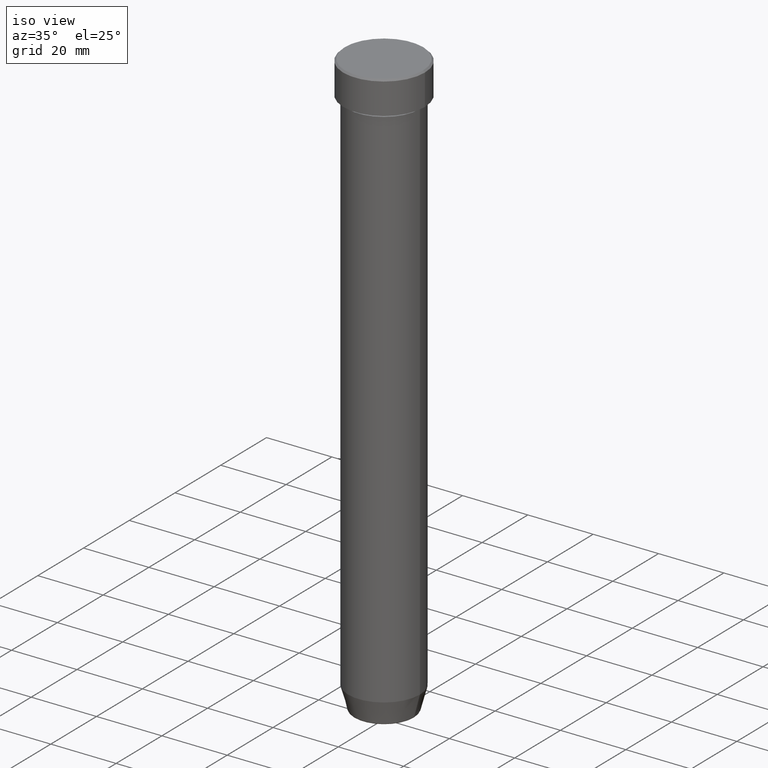
[diagram: clean part render]
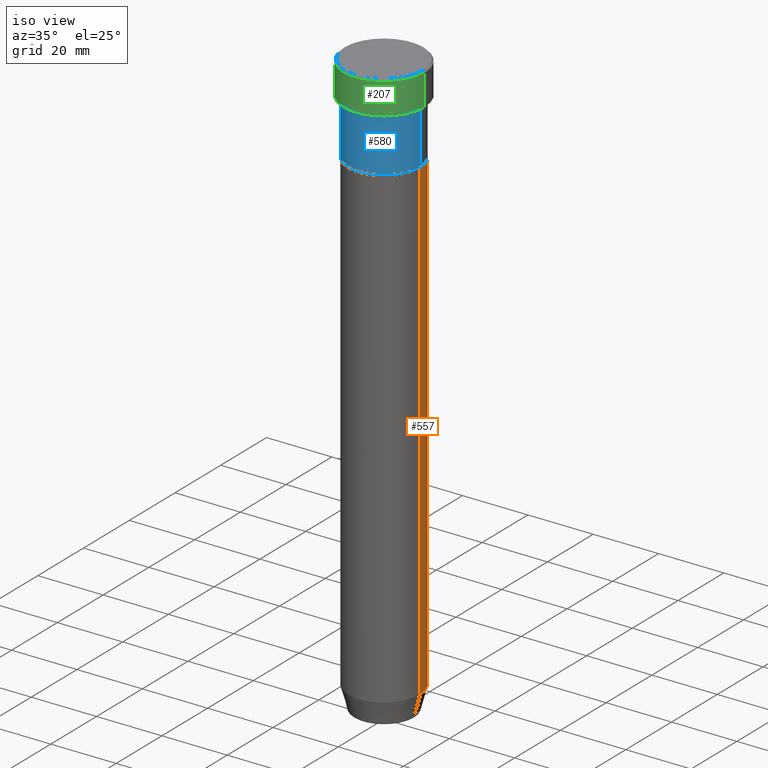
[diagram: same view with three faces highlighted in distinct colors, each labeled with its STEP entity id]
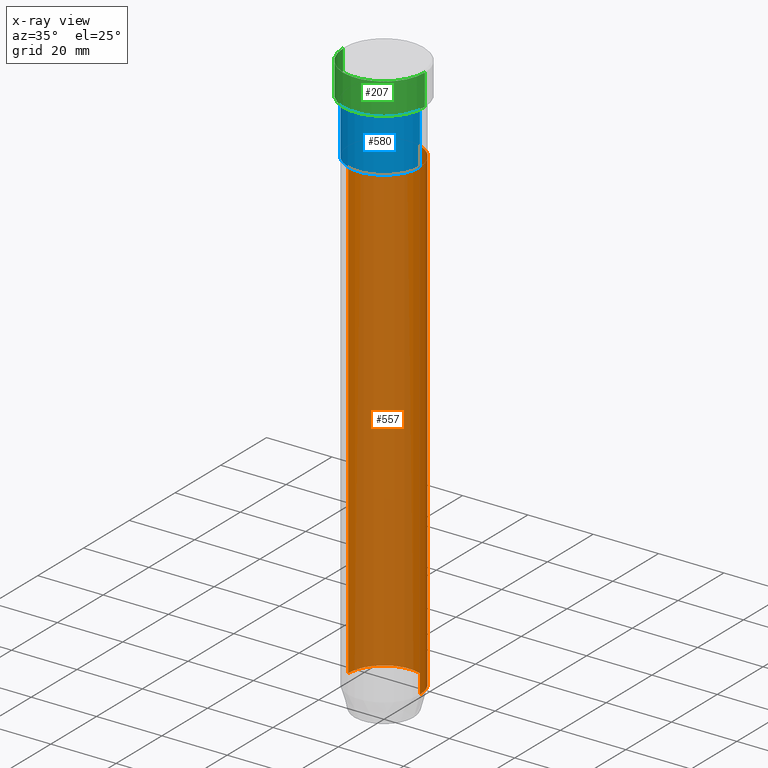
[diagram: x-ray of the same camera — body ghosted, the three highlighted faces saturated]
A machine part, iso view with three faces highlighted in distinct colors.
The next image is the same camera in x-ray (body ghosted, the three faces saturated) — at least one of them is partly hidden behind the body in this view.
Their STEP definitions:

[orange] entity #557 — the highlighted cylindrical surface (partial cylindrical patch) has radius 11 mm, axis along (-0, -0, 1).
#18 = LINE ( 'NONE', #558, #231 ) ;
#19 = EDGE_CURVE ( 'NONE', #360, #376, #563, .T. ) ;
#26 = CARTESIAN_POINT ( 'NONE',  ( 0.000000000000000000, 0.000000000000000000, 0.000000000000000000 ) ) ;
#33 = ORIENTED_EDGE ( 'NONE', *, *, #525, .F. ) ;
#36 = CARTESIAN_POINT ( 'NONE',  ( 11.00000000000000000, 0.000000000000000000, -173.0000000000000000 ) ) ;
#94 = DIRECTION ( 'NONE',  ( 1.000000000000000000, 0.000000000000000000, 0.000000000000000000 ) ) ;
#96 = DIRECTION ( 'NONE',  ( -0.000000000000000000, -0.000000000000000000, 1.000000000000000000 ) ) ;
#109 = DIRECTION ( 'NONE',  ( 1.000000000000000000, 0.000000000000000000, 0.000000000000000000 ) ) ;
#146 = DIRECTION ( 'NONE',  ( -0.000000000000000000, -0.000000000000000000, 1.000000000000000000 ) ) ;
#157 = DIRECTION ( 'NONE',  ( -0.000000000000000000, -0.000000000000000000, 1.000000000000000000 ) ) ;
#193 = FACE_OUTER_BOUND ( 'NONE', #587, .T. ) ;
#196 = VECTOR ( 'NONE', #96, 1000.000000000000000 ) ;
#231 = VECTOR ( 'NONE', #146, 1000.000000000000000 ) ;
#244 = AXIS2_PLACEMENT_3D ( 'NONE', #26, #345, #109 ) ;
#256 = EDGE_CURVE ( 'NONE', #582, #376, #577, .T. ) ;
#265 = VERTEX_POINT ( 'NONE', #36 ) ;
#268 = DIRECTION ( 'NONE',  ( -0.000000000000000000, -0.000000000000000000, 1.000000000000000000 ) ) ;
#303 = ORIENTED_EDGE ( 'NONE', *, *, #19, .T. ) ;
#309 = CYLINDRICAL_SURFACE ( 'NONE', #244, 11.00000000000000000 ) ;
#313 = AXIS2_PLACEMENT_3D ( 'NONE', #328, #157, #94 ) ;
#322 = CARTESIAN_POINT ( 'NONE',  ( 0.000000000000000000, 0.000000000000000000, -27.00000000000000000 ) ) ;
#328 = CARTESIAN_POINT ( 'NONE',  ( 0.000000000000000000, 0.000000000000000000, -173.0000000000000000 ) ) ;
#345 = DIRECTION ( 'NONE',  ( -0.000000000000000000, -0.000000000000000000, 1.000000000000000000 ) ) ;
#357 = DIRECTION ( 'NONE',  ( 1.000000000000000000, 0.000000000000000000, 0.000000000000000000 ) ) ;
#360 = VERTEX_POINT ( 'NONE', #545 ) ;
#376 = VERTEX_POINT ( 'NONE', #401 ) ;
#385 = EDGE_CURVE ( 'NONE', #265, #360, #413, .T. ) ;
#401 = CARTESIAN_POINT ( 'NONE',  ( -11.00000000000000000, 1.347111479062088405E-15, -27.00000000000000000 ) ) ;
#412 = AXIS2_PLACEMENT_3D ( 'NONE', #322, #268, #357 ) ;
#413 = CIRCLE ( 'NONE', #313, 11.00000000000000000 ) ;
#525 = EDGE_CURVE ( 'NONE', #265, #582, #18, .T. ) ;
#534 = CARTESIAN_POINT ( 'NONE',  ( 11.00000000000000000, 0.000000000000000000, -27.00000000000000000 ) ) ;
#543 = ORIENTED_EDGE ( 'NONE', *, *, #256, .F. ) ;
#545 = CARTESIAN_POINT ( 'NONE',  ( -11.00000000000000000, 1.347111479062088405E-15, -173.0000000000000000 ) ) ;
#556 = CARTESIAN_POINT ( 'NONE',  ( -11.00000000000000000, 1.347111479062088405E-15, 0.000000000000000000 ) ) ;
#557 = ADVANCED_FACE ( 'NONE', ( #193 ), #309, .T. ) ;
#558 = CARTESIAN_POINT ( 'NONE',  ( 11.00000000000000000, 0.000000000000000000, 0.000000000000000000 ) ) ;
#563 = LINE ( 'NONE', #556, #196 ) ;
#577 = CIRCLE ( 'NONE', #412, 11.00000000000000000 ) ;
#582 = VERTEX_POINT ( 'NONE', #534 ) ;
#587 = EDGE_LOOP ( 'NONE', ( #594, #303, #543, #33 ) ) ;
#594 = ORIENTED_EDGE ( 'NONE', *, *, #385, .T. ) ;

[blue] entity #580 — the highlighted cylindrical surface (partial cylindrical patch) has radius 11 mm, axis along (-0, -0, 1).
#20 = LINE ( 'NONE', #515, #250 ) ;
#34 = AXIS2_PLACEMENT_3D ( 'NONE', #314, #477, #294 ) ;
#46 = ORIENTED_EDGE ( 'NONE', *, *, #486, .F. ) ;
#49 = EDGE_CURVE ( 'NONE', #93, #286, #20, .T. ) ;
#56 = CARTESIAN_POINT ( 'NONE',  ( 11.00000000000000000, 0.000000000000000000, 0.000000000000000000 ) ) ;
#61 = DIRECTION ( 'NONE',  ( 1.000000000000000000, 0.000000000000000000, 0.000000000000000000 ) ) ;
#67 = FACE_OUTER_BOUND ( 'NONE', #386, .T. ) ;
#93 = VERTEX_POINT ( 'NONE', #113 ) ;
#104 = CARTESIAN_POINT ( 'NONE',  ( 0.000000000000000000, 0.000000000000000000, -27.00000000000000000 ) ) ;
#113 = CARTESIAN_POINT ( 'NONE',  ( -11.00000000000000000, 1.347111479062088405E-15, -27.00000000000000000 ) ) ;
#127 = CARTESIAN_POINT ( 'NONE',  ( -11.00000000000000000, 1.347111479062088405E-15, -11.00000000000000000 ) ) ;
#152 = DIRECTION ( 'NONE',  ( -0.000000000000000000, -0.000000000000000000, 1.000000000000000000 ) ) ;
#158 = EDGE_CURVE ( 'NONE', #93, #432, #574, .T. ) ;
#194 = DIRECTION ( 'NONE',  ( -0.000000000000000000, -0.000000000000000000, 1.000000000000000000 ) ) ;
#209 = AXIS2_PLACEMENT_3D ( 'NONE', #104, #194, #293 ) ;
#240 = LINE ( 'NONE', #56, #445 ) ;
#250 = VECTOR ( 'NONE', #287, 1000.000000000000000 ) ;
#286 = VERTEX_POINT ( 'NONE', #127 ) ;
#287 = DIRECTION ( 'NONE',  ( -0.000000000000000000, -0.000000000000000000, 1.000000000000000000 ) ) ;
#290 = DIRECTION ( 'NONE',  ( -0.000000000000000000, -0.000000000000000000, 1.000000000000000000 ) ) ;
#293 = DIRECTION ( 'NONE',  ( 1.000000000000000000, 0.000000000000000000, 0.000000000000000000 ) ) ;
#294 = DIRECTION ( 'NONE',  ( 1.000000000000000000, 0.000000000000000000, 0.000000000000000000 ) ) ;
#314 = CARTESIAN_POINT ( 'NONE',  ( 0.000000000000000000, 0.000000000000000000, 0.000000000000000000 ) ) ;
#364 = CIRCLE ( 'NONE', #521, 11.00000000000000000 ) ;
#371 = CARTESIAN_POINT ( 'NONE',  ( 0.000000000000000000, 0.000000000000000000, -11.00000000000000000 ) ) ;
#372 = ORIENTED_EDGE ( 'NONE', *, *, #158, .T. ) ;
#386 = EDGE_LOOP ( 'NONE', ( #430, #372, #518, #46 ) ) ;
#396 = CYLINDRICAL_SURFACE ( 'NONE', #34, 11.00000000000000000 ) ;
#411 = CARTESIAN_POINT ( 'NONE',  ( 11.00000000000000000, 0.000000000000000000, -27.00000000000000000 ) ) ;
#430 = ORIENTED_EDGE ( 'NONE', *, *, #49, .F. ) ;
#432 = VERTEX_POINT ( 'NONE', #411 ) ;
#445 = VECTOR ( 'NONE', #152, 1000.000000000000000 ) ;
#477 = DIRECTION ( 'NONE',  ( -0.000000000000000000, -0.000000000000000000, 1.000000000000000000 ) ) ;
#482 = VERTEX_POINT ( 'NONE', #526 ) ;
#486 = EDGE_CURVE ( 'NONE', #286, #482, #364, .T. ) ;
#511 = EDGE_CURVE ( 'NONE', #432, #482, #240, .T. ) ;
#515 = CARTESIAN_POINT ( 'NONE',  ( -11.00000000000000000, 1.347111479062088405E-15, 0.000000000000000000 ) ) ;
#518 = ORIENTED_EDGE ( 'NONE', *, *, #511, .T. ) ;
#521 = AXIS2_PLACEMENT_3D ( 'NONE', #371, #290, #61 ) ;
#526 = CARTESIAN_POINT ( 'NONE',  ( 11.00000000000000000, 0.000000000000000000, -11.00000000000000000 ) ) ;
#574 = CIRCLE ( 'NONE', #209, 11.00000000000000000 ) ;
#580 = ADVANCED_FACE ( 'NONE', ( #67 ), #396, .T. ) ;

[green] entity #207 — the highlighted cylindrical surface (partial cylindrical patch) has radius 12.5 mm, axis along (-0, -0, 1).
#55 = CARTESIAN_POINT ( 'NONE',  ( 0.000000000000000000, 0.000000000000000000, -0.4999999999999988343 ) ) ;
#62 = VERTEX_POINT ( 'NONE', #159 ) ;
#71 = VECTOR ( 'NONE', #547, 1000.000000000000000 ) ;
#91 = CYLINDRICAL_SURFACE ( 'NONE', #535, 12.50000000000000000 ) ;
#103 = DIRECTION ( 'NONE',  ( -0.000000000000000000, -0.000000000000000000, 1.000000000000000000 ) ) ;
#131 = DIRECTION ( 'NONE',  ( 1.000000000000000000, 0.000000000000000000, 0.000000000000000000 ) ) ;
#135 = CARTESIAN_POINT ( 'NONE',  ( -12.50000000000000000, 1.530808498934191521E-15, -0.4999999999999988343 ) ) ;
#142 = DIRECTION ( 'NONE',  ( 1.000000000000000000, 0.000000000000000000, 0.000000000000000000 ) ) ;
#143 = AXIS2_PLACEMENT_3D ( 'NONE', #55, #455, #377 ) ;
#151 = ORIENTED_EDGE ( 'NONE', *, *, #484, .T. ) ;
#159 = CARTESIAN_POINT ( 'NONE',  ( 12.50000000000000000, 0.000000000000000000, -0.4999999999999988343 ) ) ;
#172 = VERTEX_POINT ( 'NONE', #459 ) ;
#179 = DIRECTION ( 'NONE',  ( -0.000000000000000000, -0.000000000000000000, 1.000000000000000000 ) ) ;
#187 = AXIS2_PLACEMENT_3D ( 'NONE', #423, #103, #142 ) ;
#197 = LINE ( 'NONE', #467, #537 ) ;
#207 = ADVANCED_FACE ( 'NONE', ( #325 ), #91, .T. ) ;
#253 = ORIENTED_EDGE ( 'NONE', *, *, #428, .T. ) ;
#262 = VERTEX_POINT ( 'NONE', #135 ) ;
#325 = FACE_OUTER_BOUND ( 'NONE', #567, .T. ) ;
#327 = ORIENTED_EDGE ( 'NONE', *, *, #595, .F. ) ;
#373 = CIRCLE ( 'NONE', #143, 12.50000000000000000 ) ;
#377 = DIRECTION ( 'NONE',  ( 1.000000000000000000, 0.000000000000000000, 0.000000000000000000 ) ) ;
#402 = CARTESIAN_POINT ( 'NONE',  ( 0.000000000000000000, 0.000000000000000000, 0.000000000000000000 ) ) ;
#423 = CARTESIAN_POINT ( 'NONE',  ( 0.000000000000000000, 0.000000000000000000, -10.00000000000000000 ) ) ;
#428 = EDGE_CURVE ( 'NONE', #62, #262, #373, .T. ) ;
#434 = LINE ( 'NONE', #581, #71 ) ;
#455 = DIRECTION ( 'NONE',  ( 0.000000000000000000, 0.000000000000000000, -1.000000000000000000 ) ) ;
#459 = CARTESIAN_POINT ( 'NONE',  ( 12.50000000000000000, 0.000000000000000000, -10.00000000000000000 ) ) ;
#467 = CARTESIAN_POINT ( 'NONE',  ( 12.50000000000000000, 0.000000000000000000, 0.000000000000000000 ) ) ;
#484 = EDGE_CURVE ( 'NONE', #512, #172, #540, .T. ) ;
#509 = ORIENTED_EDGE ( 'NONE', *, *, #539, .T. ) ;
#512 = VERTEX_POINT ( 'NONE', #561 ) ;
#535 = AXIS2_PLACEMENT_3D ( 'NONE', #402, #179, #131 ) ;
#537 = VECTOR ( 'NONE', #573, 1000.000000000000000 ) ;
#539 = EDGE_CURVE ( 'NONE', #172, #62, #197, .T. ) ;
#540 = CIRCLE ( 'NONE', #187, 12.50000000000000000 ) ;
#547 = DIRECTION ( 'NONE',  ( -0.000000000000000000, -0.000000000000000000, 1.000000000000000000 ) ) ;
#561 = CARTESIAN_POINT ( 'NONE',  ( -12.50000000000000000, 1.530808498934191521E-15, -10.00000000000000000 ) ) ;
#567 = EDGE_LOOP ( 'NONE', ( #327, #151, #509, #253 ) ) ;
#573 = DIRECTION ( 'NONE',  ( -0.000000000000000000, -0.000000000000000000, 1.000000000000000000 ) ) ;
#581 = CARTESIAN_POINT ( 'NONE',  ( -12.50000000000000000, 1.530808498934191521E-15, 0.000000000000000000 ) ) ;
#595 = EDGE_CURVE ( 'NONE', #512, #262, #434, .T. ) ;